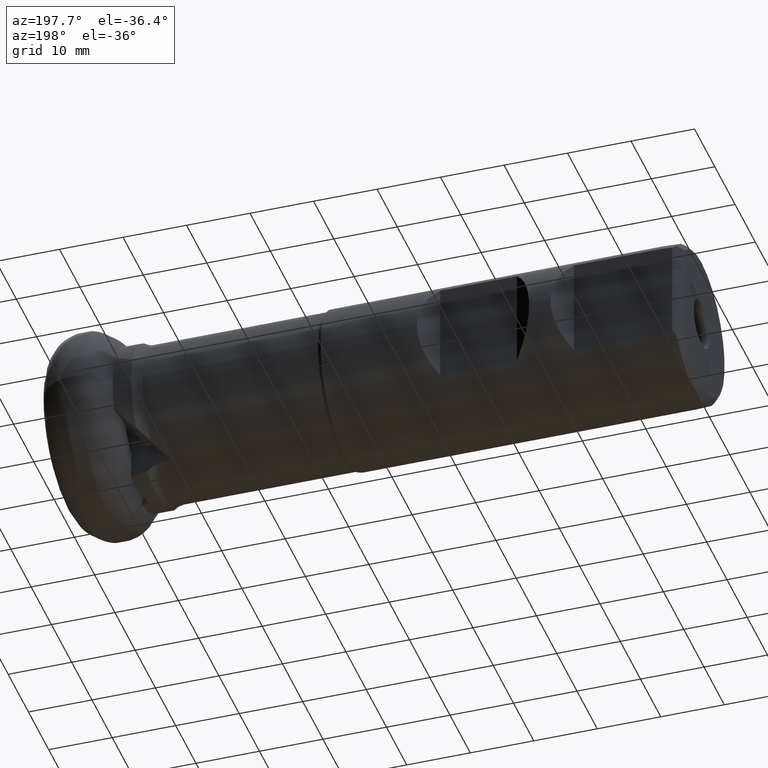
[diagram: clean part render]
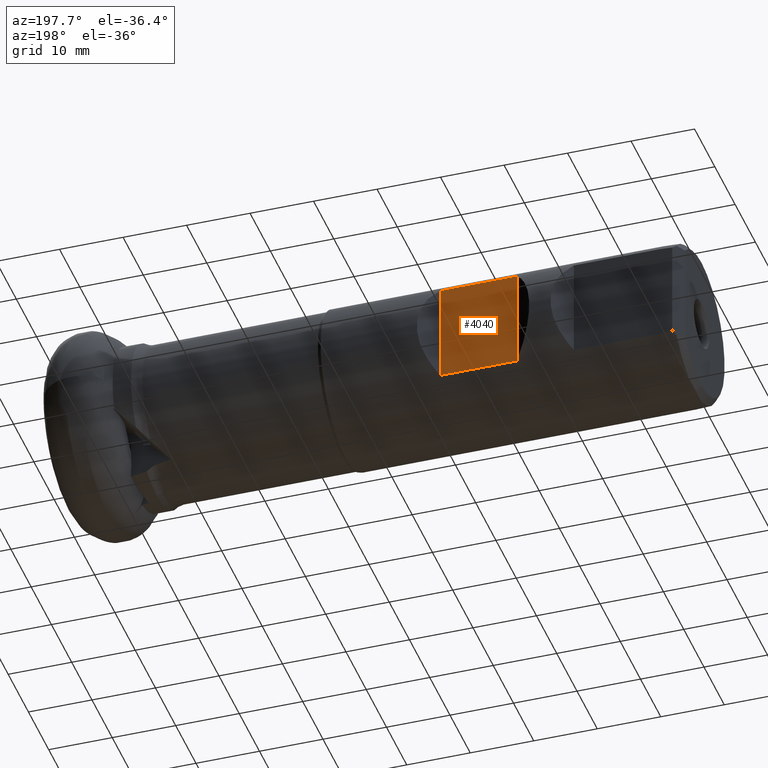
[diagram: same view with one face highlighted and labeled with its STEP entity id]
A machine part, auxiliary view. The second image highlights one B-rep face of the part: STEP entity #4040.
In plain terms, the highlighted planar face has unit normal (0, -1, -0).
Its self-contained STEP definition (entity closure, byte-faithful):
#124 = AXIS2_PLACEMENT_3D ( 'NONE', #3360, #257, #1676 ) ;
#134 = DIRECTION ( 'NONE',  ( -0.0000000000000000000, -0.0000000000000000000, 1.000000000000000000 ) ) ;
#145 = VERTEX_POINT ( 'NONE', #2151 ) ;
#176 = ORIENTED_EDGE ( 'NONE', *, *, #708, .F. ) ;
#193 = ORIENTED_EDGE ( 'NONE', *, *, #2887, .T. ) ;
#257 = DIRECTION ( 'NONE',  ( 0.0000000000000000000, -1.000000000000000000, -0.0000000000000000000 ) ) ;
#617 = PLANE ( 'NONE',  #124 ) ;
#681 = EDGE_LOOP ( 'NONE', ( #193, #1083, #2593, #176 ) ) ;
#708 = EDGE_CURVE ( 'NONE', #3521, #3237, #3844, .T. ) ;
#778 = CARTESIAN_POINT ( 'NONE',  ( -60.70000000000000300, 9.700000000000011700, 7.884161337770763100 ) ) ;
#827 = CARTESIAN_POINT ( 'NONE',  ( -72.79999999999999700, 9.700000000000011700, -25.00000000000000000 ) ) ;
#1083 = ORIENTED_EDGE ( 'NONE', *, *, #3215, .T. ) ;
#1124 = VERTEX_POINT ( 'NONE', #2470 ) ;
#1213 = VECTOR ( 'NONE', #1982, 1000.000000000000000 ) ;
#1318 = LINE ( 'NONE', #1625, #1213 ) ;
#1369 = LINE ( 'NONE', #827, #4123 ) ;
#1398 = DIRECTION ( 'NONE',  ( 1.000000000000000000, -0.0000000000000000000, -0.0000000000000000000 ) ) ;
#1625 = CARTESIAN_POINT ( 'NONE',  ( 0.0000000000000000000, 9.700000000000011700, -7.884161337770782700 ) ) ;
#1676 = DIRECTION ( 'NONE',  ( 0.0000000000000000000, 0.0000000000000000000, -1.000000000000000000 ) ) ;
#1735 = FACE_OUTER_BOUND ( 'NONE', #681, .T. ) ;
#1796 = DIRECTION ( 'NONE',  ( -0.0000000000000000000, -0.0000000000000000000, 1.000000000000000000 ) ) ;
#1921 = LINE ( 'NONE', #4225, #2933 ) ;
#1982 = DIRECTION ( 'NONE',  ( -1.000000000000000000, 0.0000000000000000000, 0.0000000000000000000 ) ) ;
#2151 = CARTESIAN_POINT ( 'NONE',  ( -72.79999999999999700, 9.700000000000011700, -7.884161337770791500 ) ) ;
#2470 = CARTESIAN_POINT ( 'NONE',  ( -72.79999999999999700, 9.700000000000011700, 7.884161337770777300 ) ) ;
#2550 = EDGE_CURVE ( 'NONE', #1124, #3237, #1921, .T. ) ;
#2593 = ORIENTED_EDGE ( 'NONE', *, *, #2550, .T. ) ;
#2800 = CARTESIAN_POINT ( 'NONE',  ( -60.70000000000000300, 9.700000000000011700, -25.00000000000000000 ) ) ;
#2887 = EDGE_CURVE ( 'NONE', #3521, #145, #1318, .T. ) ;
#2933 = VECTOR ( 'NONE', #1398, 1000.000000000000000 ) ;
#3215 = EDGE_CURVE ( 'NONE', #145, #1124, #1369, .T. ) ;
#3237 = VERTEX_POINT ( 'NONE', #778 ) ;
#3360 = CARTESIAN_POINT ( 'NONE',  ( -60.70000000000000300, 9.700000000000011700, -25.00000000000000000 ) ) ;
#3362 = CARTESIAN_POINT ( 'NONE',  ( -60.70000000000000300, 9.700000000000011700, -7.884161337770777300 ) ) ;
#3521 = VERTEX_POINT ( 'NONE', #3362 ) ;
#3844 = LINE ( 'NONE', #2800, #4060 ) ;
#4040 = ADVANCED_FACE ( 'NONE', ( #1735 ), #617, .F. ) ;
#4060 = VECTOR ( 'NONE', #1796, 1000.000000000000000 ) ;
#4123 = VECTOR ( 'NONE', #134, 1000.000000000000000 ) ;
#4225 = CARTESIAN_POINT ( 'NONE',  ( 0.0000000000000000000, 9.700000000000011700, 7.884161337770782700 ) ) ;